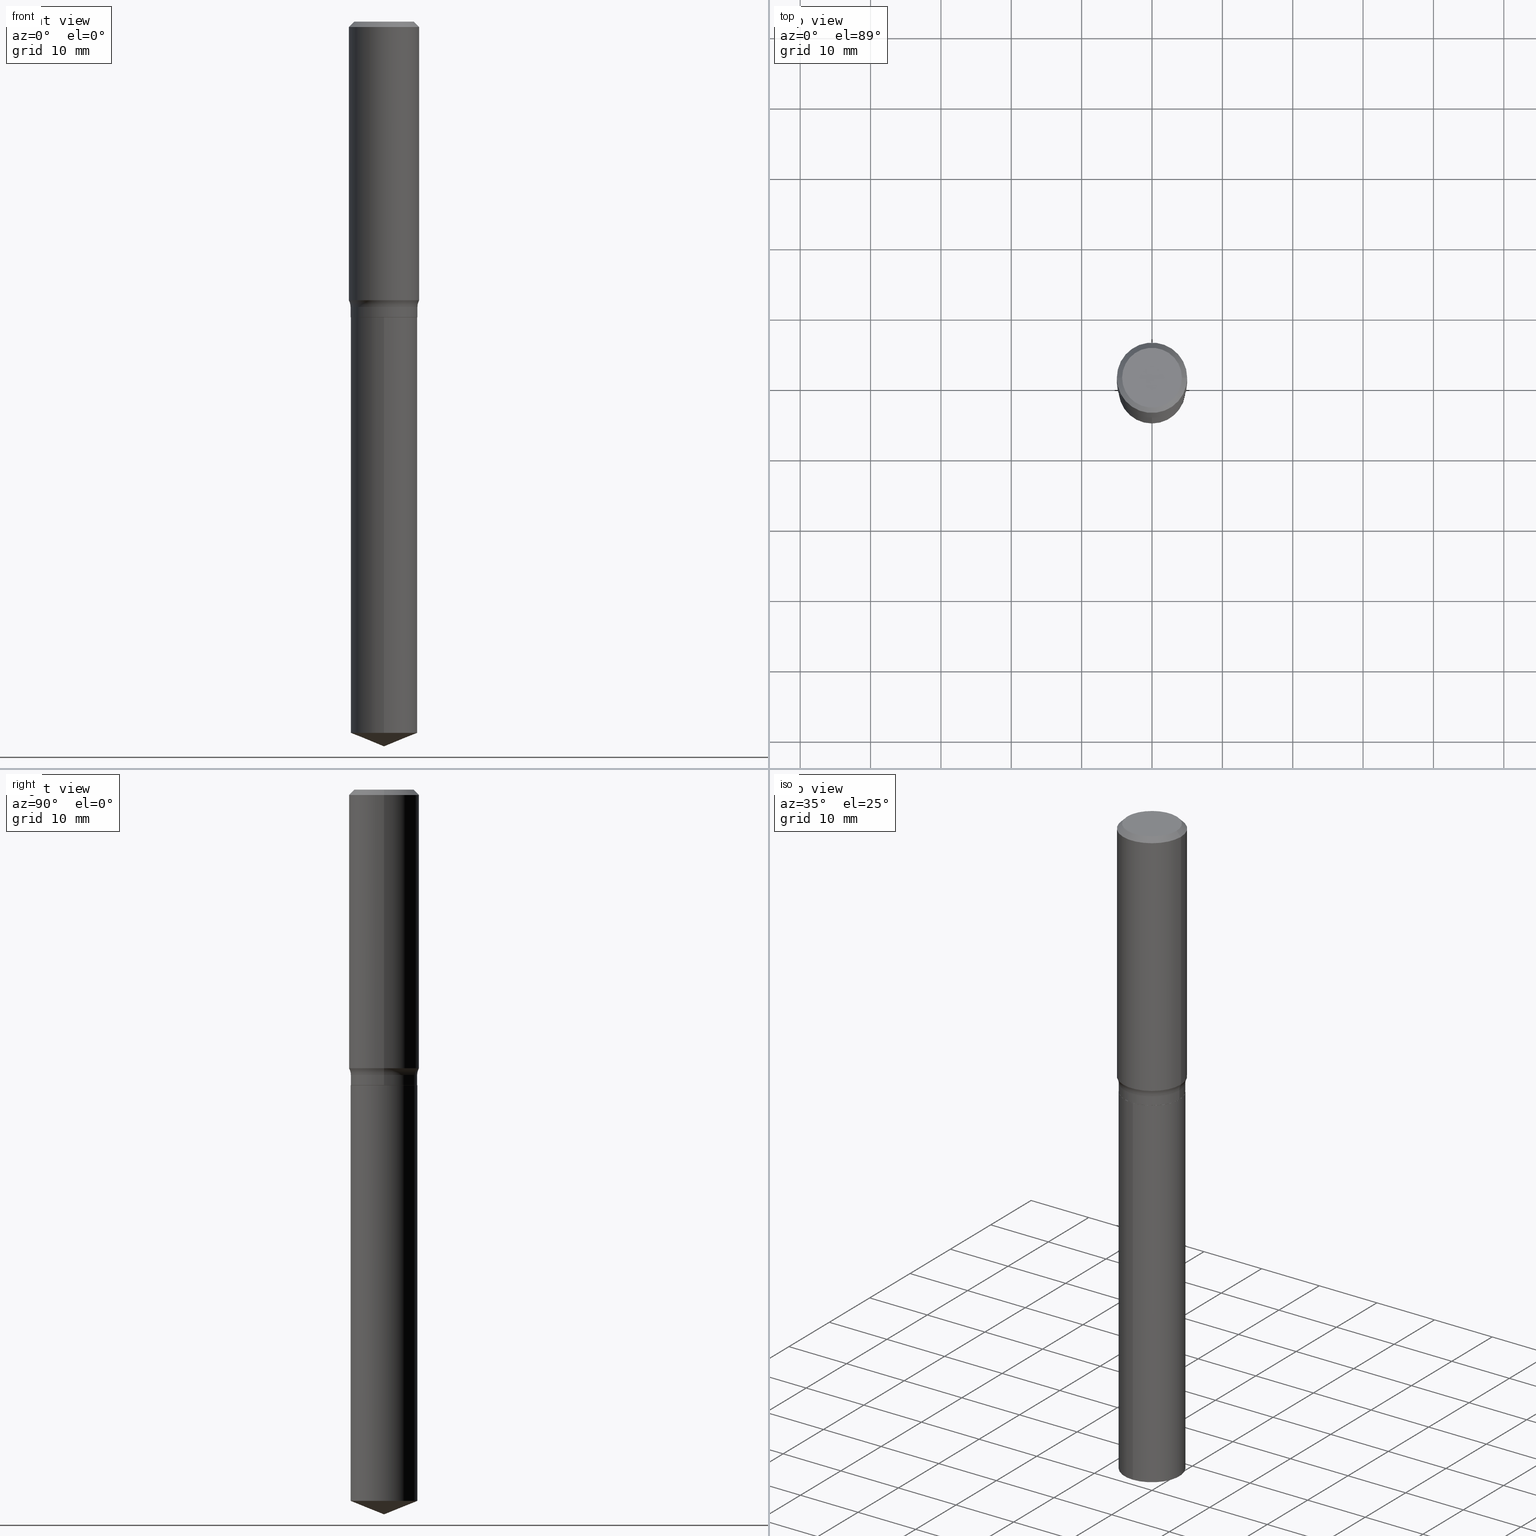
[diagram: canonical four-view strip — front | top / right | iso, engineering-drawing reading convention]
A machine part, canonical four-view strip (front | top / right | iso — engineering-drawing reading convention). The complete STEP part file that produces these views, byte-faithful:
ISO-10303-21;
HEADER;
FILE_DESCRIPTION (( 'STEP AP203' ),
    '1' );
FILE_NAME ('69288.STEP',
    '2024-04-19T17:40:49',
    ( '' ),
    ( '' ),
    'SwSTEP 2.0',
    'SolidWorks 2023',
    '' );
FILE_SCHEMA (( 'CONFIG_CONTROL_DESIGN' ));
ENDSEC;

DATA;
#1 = CIRCLE ( 'NONE', #29, 0.1968500000000000527 ) ;
#2 = EDGE_LOOP ( 'NONE', ( #348, #92, #356, #269 ) ) ;
#3 = EDGE_CURVE ( 'NONE', #179, #192, #471, .T. ) ;
#4 = DIRECTION ( 'NONE',  ( 1.000000000000000000, -6.982962677686265922E-15, 4.876176775795935793E-29 ) ) ;
#5 = CARTESIAN_POINT ( 'NONE',  ( 0.000000000000000000, 0.000000000000000000, 0.000000000000000000 ) ) ;
#6 =( NAMED_UNIT ( * ) PLANE_ANGLE_UNIT ( ) SI_UNIT ( $, .RADIAN. ) );
#7 = CIRCLE ( 'NONE', #490, 0.1673224999999999851 ) ;
#8 = APPLICATION_CONTEXT ( 'configuration controlled 3d designs of mechanical parts and assemblies' ) ;
#9 = ORIENTED_EDGE ( 'NONE', *, *, #268, .T. ) ;
#10 = DIRECTION ( 'NONE',  ( -2.445468806185136597E-29, 3.491481338843145583E-15, 1.000000000000000000 ) ) ;
#11 = DIRECTION ( 'NONE',  ( 1.000000000000000000, -6.982962677686269866E-15, 0.000000000000000000 ) ) ;
#12 = ORIENTED_EDGE ( 'NONE', *, *, #215, .T. ) ;
#13 = EDGE_CURVE ( 'NONE', #156, #262, #135, .T. ) ;
#14 = ORIENTED_EDGE ( 'NONE', *, *, #245, .F. ) ;
#15 = AXIS2_PLACEMENT_3D ( 'NONE', #89, #52, #358 ) ;
#16 = LOCAL_TIME ( 13, 40, 49.00000000000000000, #173 ) ;
#17 = DIRECTION ( 'NONE',  ( 0.7071067811865459074, -7.319954787623249734E-15, -0.7071067811865491270 ) ) ;
#18 = PERSON_AND_ORGANIZATION ( #311, #72 ) ;
#19 = ORIENTED_EDGE ( 'NONE', *, *, #283, .F. ) ;
#20 = DIRECTION ( 'NONE',  ( 2.445468806185136597E-29, -3.491481338843145583E-15, -1.000000000000000000 ) ) ;
#21 = DIRECTION ( 'NONE',  ( -0.7071067811864267805, 7.493145998869918709E-15, 0.7071067811866682540 ) ) ;
#22 = ADVANCED_FACE ( 'NONE', ( #282 ), #126, .T. ) ;
#23 = CARTESIAN_POINT ( 'NONE',  ( 0.1968500000000000527, -1.453583746094018101E-15, -0.02952750000000018554 ) ) ;
#24 = AXIS2_PLACEMENT_3D ( 'NONE', #74, #275, #483 ) ;
#25 = CIRCLE ( 'NONE', #307, 0.1869999999999999996 ) ;
#26 = CARTESIAN_POINT ( 'NONE',  ( 9.916532697805385385E-29, -1.415773403500555029E-14, -4.054999999999999716 ) ) ;
#27 = ORIENTED_EDGE ( 'NONE', *, *, #341, .T. ) ;
#28 = DIRECTION ( 'NONE',  ( -1.000000000000000000, 6.982962677686266711E-15, 0.000000000000000000 ) ) ;
#29 = AXIS2_PLACEMENT_3D ( 'NONE', #100, #458, #205 ) ;
#30 = ADVANCED_FACE ( 'NONE', ( #446 ), #451, .F. ) ;
#31 = DIRECTION ( 'NONE',  ( 1.000000000000000000, -6.982962677686265133E-15, 0.000000000000000000 ) ) ;
#32 = PRODUCT_DEFINITION_SHAPE ( 'NONE', 'NONE',  #84 ) ;
#33 = CARTESIAN_POINT ( 'NONE',  ( -0.2649999999999999578, -3.692608300234353392E-15, -1.596899999999999764 ) ) ;
#34 = VERTEX_POINT ( 'NONE', #470 ) ;
#35 = ORIENTED_EDGE ( 'NONE', *, *, #468, .T. ) ;
#36 = FACE_OUTER_BOUND ( 'NONE', #207, .T. ) ;
#37 = CIRCLE ( 'NONE', #150, 0.1869999999999999996 ) ;
#38 = AXIS2_PLACEMENT_3D ( 'NONE', #274, #10, #272 ) ;
#39 = VERTEX_POINT ( 'NONE', #123 ) ;
#40 = PLANE ( 'NONE',  #266 ) ;
#41 = EDGE_LOOP ( 'NONE', ( #397, #12, #316, #267 ) ) ;
#42 = CARTESIAN_POINT ( 'NONE',  ( 4.043338124146504977E-29, -5.772815245643255982E-15, -1.653399999999999981 ) ) ;
#43 = DIRECTION ( 'NONE',  ( -2.445468806185136877E-29, 3.491481338843145188E-15, 1.000000000000000000 ) ) ;
#44 = CARTESIAN_POINT ( 'NONE',  ( 4.043338124146503856E-29, -5.772815245643255193E-15, -1.653399999999999537 ) ) ;
#45 = DIRECTION ( 'NONE',  ( -6.474490251793180995E-15, -0.9271838545667867582, 0.3746065934159135136 ) ) ;
#46 = EDGE_CURVE ( 'NONE', #192, #179, #279, .T. ) ;
#47 = DIRECTION ( 'NONE',  ( 1.000000000000000000, -6.982962677686266711E-15, 4.876176775795935793E-29 ) ) ;
#48 = CIRCLE ( 'NONE', #364, 0.1968500000000002470 ) ;
#49 = CARTESIAN_POINT ( 'NONE',  ( 0.1968500000000002470, -6.817669790081734907E-15, -1.558958235412674087 ) ) ;
#50 = CONICAL_SURFACE ( 'NONE', #79, 0.1968500000000000527, 0.7853981633974460586 ) ;
#51 = SECURITY_CLASSIFICATION ( '', '', #241 ) ;
#52 = DIRECTION ( 'NONE',  ( -2.445468806185136597E-29, 3.491481338843145583E-15, 1.000000000000000000 ) ) ;
#53 = EDGE_CURVE ( 'NONE', #398, #98, #103, .T. ) ;
#54 = ORIENTED_EDGE ( 'NONE', *, *, #393, .F. ) ;
#55 = DIRECTION ( 'NONE',  ( 1.000000000000000000, 0.000000000000000000, 0.000000000000000000 ) ) ;
#56 = PERSON_AND_ORGANIZATION_ROLE ( 'design_supplier' ) ;
#57 = ORIENTED_EDGE ( 'NONE', *, *, #468, .F. ) ;
#58 = VERTEX_POINT ( 'NONE', #196 ) ;
#59 = CARTESIAN_POINT ( 'NONE',  ( 3.905169136597044195E-29, -5.575546549998618979E-15, -1.596899999999999764 ) ) ;
#60 = ORIENTED_EDGE ( 'NONE', *, *, #190, .T. ) ;
#61 = CLOSED_SHELL ( 'NONE', ( #425, #214, #64, #30, #339, #115, #432, #22, #340, #235, #457, #149 ) ) ;
#62 = LINE ( 'NONE', #70, #452 ) ;
#63 = CC_DESIGN_SECURITY_CLASSIFICATION ( #51, ( #324 ) ) ;
#64 = ADVANCED_FACE ( 'NONE', ( #318 ), #128, .T. ) ;
#65 = PERSON_AND_ORGANIZATION_ROLE ( 'creator' ) ;
#66 = CARTESIAN_POINT ( 'NONE',  ( 4.043338124146504977E-29, -5.772815245643255982E-15, -1.653399999999999981 ) ) ;
#67 = FACE_OUTER_BOUND ( 'NONE', #479, .T. ) ;
#68 = CARTESIAN_POINT ( 'NONE',  ( -0.1968500000000001360, 1.398703375343758182E-15, -9.682923725166790684E-30 ) ) ;
#69 = CARTESIAN_POINT ( 'NONE',  ( 1.328714915871427774E-15, 0.1869999999999942542, -1.653400000000000203 ) ) ;
#70 = CARTESIAN_POINT ( 'NONE',  ( -0.1869999999999999996, 1.328714915871387344E-15, -9.198408618776673100E-30 ) ) ;
#71 = AXIS2_PLACEMENT_3D ( 'NONE', #392, #355, #276 ) ;
#72 = ORGANIZATION ( 'UNSPECIFIED', 'UNSPECIFIED', '' ) ;
#73 = DIRECTION ( 'NONE',  ( -2.445468806185136597E-29, 3.491481338843145583E-15, 1.000000000000000000 ) ) ;
#74 = CARTESIAN_POINT ( 'NONE',  ( 4.043338124146503856E-29, -5.772815245643255193E-15, -1.653399999999999537 ) ) ;
#75 = ADVANCED_FACE ( 'NONE', ( #171 ), #265, .T. ) ;
#76 = EDGE_CURVE ( 'NONE', #98, #398, #87, .T. ) ;
#77 = EDGE_CURVE ( 'NONE', #273, #492, #48, .T. ) ;
#78 = ORIENTED_EDGE ( 'NONE', *, *, #3, .T. ) ;
#79 = AXIS2_PLACEMENT_3D ( 'NONE', #377, #213, #28 ) ;
#80 = EDGE_CURVE ( 'NONE', #244, #58, #463, .T. ) ;
#81 = ADVANCED_FACE ( 'NONE', ( #455 ), #291, .F. ) ;
#82 = FACE_OUTER_BOUND ( 'NONE', #133, .T. ) ;
#83 = CARTESIAN_POINT ( 'NONE',  ( 0.1968500000000001360, -1.374596203102542594E-15, 9.598753983154306463E-30 ) ) ;
#84 = PRODUCT_DEFINITION ( 'UNKNOWN', '', #324, #152 ) ;
#85 = PRODUCT ( '69288', '69288', '', ( #167 ) ) ;
#86 = APPROVAL_ROLE ( '' ) ;
#87 = CIRCLE ( 'NONE', #378, 0.1869999999999999996 ) ;
#88 = CC_DESIGN_APPROVAL ( #469, ( #84 ) ) ;
#89 = CARTESIAN_POINT ( 'NONE',  ( 3.905169136597044195E-29, -5.575546549998618979E-15, -1.596899999999999764 ) ) ;
#90 = CARTESIAN_POINT ( 'NONE',  ( 3.812383734847119747E-29, -5.443073586979190932E-15, -1.558958235412674087 ) ) ;
#91 = DIRECTION ( 'NONE',  ( 1.000000000000000000, -6.982962677686265133E-15, 0.000000000000000000 ) ) ;
#92 = ORIENTED_EDGE ( 'NONE', *, *, #405, .F. ) ;
#93 = CARTESIAN_POINT ( 'NONE',  ( 0.1864999999999999991, -7.075137785031744976E-15, -1.653399999999999981 ) ) ;
#94 = DIRECTION ( 'NONE',  ( -2.445507172700810819E-29, 3.491426395809013811E-15, 1.000000000000000000 ) ) ;
#95 = CIRCLE ( 'NONE', #157, 0.1869999999999999996 ) ;
#96 = ORIENTED_EDGE ( 'NONE', *, *, #185, .T. ) ;
#97 = DIRECTION ( 'NONE',  ( -2.445468806185136597E-29, 3.491481338843145583E-15, 1.000000000000000000 ) ) ;
#98 = VERTEX_POINT ( 'NONE', #232 ) ;
#99 = ORIENTED_EDGE ( 'NONE', *, *, #80, .F. ) ;
#100 = CARTESIAN_POINT ( 'NONE',  ( 7.220858017463207734E-31, -1.030947152326916363E-16, -0.02952750000000018554 ) ) ;
#101 = LINE ( 'NONE', #409, #347 ) ;
#102 = CALENDAR_DATE ( 2024, 19, 4 ) ;
#103 = CIRCLE ( 'NONE', #15, 0.1869999999999999996 ) ;
#104 = VECTOR ( 'NONE', #45, 39.37007874015748143 ) ;
#105 = DIRECTION ( 'NONE',  ( -2.445468806185136597E-29, 3.491481338843145583E-15, 1.000000000000000000 ) ) ;
#106 = CARTESIAN_POINT ( 'NONE',  ( 4.043338124146503856E-29, -5.772815245643255193E-15, -1.653399999999999537 ) ) ;
#107 = CARTESIAN_POINT ( 'NONE',  ( -0.1968500000000000527, -1.374380775762182930E-15, -0.02952750000000018554 ) ) ;
#108 = EDGE_CURVE ( 'NONE', #34, #398, #320, .T. ) ;
#109 = DIRECTION ( 'NONE',  ( -2.445507172700810819E-29, 3.491426395809013811E-15, 1.000000000000000000 ) ) ;
#110 = APPROVAL_PERSON_ORGANIZATION ( #296, #411, #371 ) ;
#111 = ORIENTED_EDGE ( 'NONE', *, *, #226, .T. ) ;
#112 = EDGE_CURVE ( 'NONE', #381, #435, #95, .T. ) ;
#113 = DIRECTION ( 'NONE',  ( -6.982962677686266711E-15, -1.000000000000000000, 2.921762560068730595E-15 ) ) ;
#114 = ORIENTED_EDGE ( 'NONE', *, *, #195, .T. ) ;
#115 = ADVANCED_FACE ( 'NONE', ( #161 ), #401, .T. ) ;
#116 = DIRECTION ( 'NONE',  ( 7.105427357601001859E-15, 1.000000000000000000, -3.491481338843145583E-15 ) ) ;
#117 = CIRCLE ( 'NONE', #280, 0.1869999999999999996 ) ;
#118 = CC_DESIGN_PERSON_AND_ORGANIZATION_ASSIGNMENT ( #18, #177, ( #51 ) ) ;
#119 = EDGE_LOOP ( 'NONE', ( #148, #174, #27, #172 ) ) ;
#120 = ORIENTED_EDGE ( 'NONE', *, *, #217, .F. ) ;
#121 = DIRECTION ( 'NONE',  ( -2.445468806185136597E-29, 3.491481338843145583E-15, 1.000000000000000000 ) ) ;
#122 = AXIS2_PLACEMENT_3D ( 'NONE', #66, #73, #300 ) ;
#123 = CARTESIAN_POINT ( 'NONE',  ( 9.916531585301787226E-29, -1.415773403500555029E-14, -4.054999999999999716 ) ) ;
#124 = DIRECTION ( 'NONE',  ( 1.000000000000000000, -6.982962677686265133E-15, 0.000000000000000000 ) ) ;
#125 = MANIFOLD_SOLID_BREP ( 'Body-Move/Copy2[2]', #61 ) ;
#126 = CYLINDRICAL_SURFACE ( 'NONE', #249, 0.1968500000000001360 ) ;
#127 = PERSON_AND_ORGANIZATION ( #311, #72 ) ;
#128 = CYLINDRICAL_SURFACE ( 'NONE', #164, 0.1968500000000001360 ) ;
#129 = DATE_AND_TIME ( #412, #184 ) ;
#130 = CARTESIAN_POINT ( 'NONE',  ( -0.1968500000000000527, 1.271501487869850317E-15, -0.02952750000000018554 ) ) ;
#131 = AXIS2_PLACEMENT_3D ( 'NONE', #137, #332, #143 ) ;
#132 = APPLICATION_PROTOCOL_DEFINITION ( 'international standard', 'config_control_design', 1994, #390 ) ;
#133 = EDGE_LOOP ( 'NONE', ( #238, #363 ) ) ;
#134 = CALENDAR_DATE ( 2024, 19, 4 ) ;
#135 = LINE ( 'NONE', #130, #223 ) ;
#136 = CARTESIAN_POINT ( 'NONE',  ( 4.043338124146504977E-29, -5.772815245643255982E-15, -1.653399999999999981 ) ) ;
#137 = CARTESIAN_POINT ( 'NONE',  ( 0.000000000000000000, 0.000000000000000000, 0.000000000000000000 ) ) ;
#138 = ORIENTED_EDGE ( 'NONE', *, *, #305, .F. ) ;
#139 = EDGE_LOOP ( 'NONE', ( #284, #287, #160, #485 ) ) ;
#140 = CARTESIAN_POINT ( 'NONE',  ( 0.1864999999999999991, -7.075137785031744976E-15, -1.653399999999999981 ) ) ;
#141 = PERSON_AND_ORGANIZATION_ROLE ( 'creator' ) ;
#142 = AXIS2_PLACEMENT_3D ( 'NONE', #90, #475, #472 ) ;
#143 = DIRECTION ( 'NONE',  ( 1.000000000000000000, -6.982962677686266711E-15, 4.876176775795935793E-29 ) ) ;
#144 = COORDINATED_UNIVERSAL_TIME_OFFSET ( 5, 0, .BEHIND. ) ;
#145 = LINE ( 'NONE', #297, #465 ) ;
#146 = DIRECTION ( 'NONE',  ( -1.000000000000000000, 6.982962677686266711E-15, 0.000000000000000000 ) ) ;
#147 = EDGE_CURVE ( 'NONE', #273, #262, #256, .T. ) ;
#148 = ORIENTED_EDGE ( 'NONE', *, *, #215, .F. ) ;
#149 = ADVANCED_FACE ( 'NONE', ( #211 ), #188, .T. ) ;
#150 = AXIS2_PLACEMENT_3D ( 'NONE', #263, #424, #31 ) ;
#151 = CIRCLE ( 'NONE', #353, 0.1968500000000000527 ) ;
#152 = DESIGN_CONTEXT ( 'detailed design', #390, 'design' ) ;
#153 = CARTESIAN_POINT ( 'NONE',  ( 4.043338124146503856E-29, -5.772815245643255193E-15, -1.653399999999999537 ) ) ;
#154 = ORIENTED_EDGE ( 'NONE', *, *, #112, .F. ) ;
#155 = EDGE_LOOP ( 'NONE', ( #54, #315, #154 ) ) ;
#156 = VERTEX_POINT ( 'NONE', #404 ) ;
#157 = AXIS2_PLACEMENT_3D ( 'NONE', #442, #193, #240 ) ;
#158 =( GEOMETRIC_REPRESENTATION_CONTEXT ( 3 ) GLOBAL_UNCERTAINTY_ASSIGNED_CONTEXT ( ( #461 ) ) GLOBAL_UNIT_ASSIGNED_CONTEXT ( ( #350, #6, #162 ) ) REPRESENTATION_CONTEXT ( 'NONE', 'WORKASPACE' ) );
#159 = EDGE_LOOP ( 'NONE', ( #60, #319, #440, #168 ) ) ;
#160 = ORIENTED_EDGE ( 'NONE', *, *, #108, .T. ) ;
#161 = FACE_OUTER_BOUND ( 'NONE', #139, .T. ) ;
#162 =( NAMED_UNIT ( * ) SI_UNIT ( $, .STERADIAN. ) SOLID_ANGLE_UNIT ( ) );
#163 = EDGE_LOOP ( 'NONE', ( #466, #111, #484, #194 ) ) ;
#164 = AXIS2_PLACEMENT_3D ( 'NONE', #5, #362, #47 ) ;
#165 = TOROIDAL_SURFACE ( 'NONE', #38, 0.2649999999999999578, 0.07799999999999997213 ) ;
#166 = DIRECTION ( 'NONE',  ( -2.445468806185136597E-29, 3.491481338843145583E-15, 1.000000000000000000 ) ) ;
#167 = MECHANICAL_CONTEXT ( 'NONE', #8, 'mechanical' ) ;
#168 = ORIENTED_EDGE ( 'NONE', *, *, #108, .F. ) ;
#169 = ORIENTED_EDGE ( 'NONE', *, *, #385, .F. ) ;
#170 = DIRECTION ( 'NONE',  ( -2.445507172700810819E-29, 3.491426395809013811E-15, 1.000000000000000000 ) ) ;
#171 = FACE_OUTER_BOUND ( 'NONE', #155, .T. ) ;
#172 = ORIENTED_EDGE ( 'NONE', *, *, #391, .F. ) ;
#173 = COORDINATED_UNIVERSAL_TIME_OFFSET ( 5, 0, .BEHIND. ) ;
#174 = ORIENTED_EDGE ( 'NONE', *, *, #197, .T. ) ;
#175 = LOCAL_TIME ( 13, 40, 49.00000000000000000, #144 ) ;
#176 = DIRECTION ( 'NONE',  ( 1.000000000000000000, -6.982962677686267499E-15, 4.876294436782262290E-29 ) ) ;
#177 = PERSON_AND_ORGANIZATION_ROLE ( 'classification_officer' ) ;
#178 = CARTESIAN_POINT ( 'NONE',  ( 4.043338124146503856E-29, -5.772815245643255193E-15, -1.653399999999999537 ) ) ;
#179 = VERTEX_POINT ( 'NONE', #372 ) ;
#180 = CARTESIAN_POINT ( 'NONE',  ( -0.1968500000000002470, -4.044370211635432356E-15, -1.558958235412674087 ) ) ;
#181 = DIRECTION ( 'NONE',  ( -2.445507172700810819E-29, 3.491426395809013811E-15, 1.000000000000000000 ) ) ;
#182 = DATE_TIME_ROLE ( 'classification_date' ) ;
#183 = CYLINDRICAL_SURFACE ( 'NONE', #383, 0.1869999999999999996 ) ;
#184 = LOCAL_TIME ( 13, 40, 49.00000000000000000, #416 ) ;
#185 = EDGE_CURVE ( 'NONE', #435, #192, #252, .T. ) ;
#186 = CYLINDRICAL_SURFACE ( 'NONE', #423, 0.1869999999999999996 ) ;
#187 = CONICAL_SURFACE ( 'NONE', #473, 0.1968500000000000527, 0.7853981633974460586 ) ;
#188 = CONICAL_SURFACE ( 'NONE', #480, 0.1864999999999999991, 0.7853981633972775267 ) ;
#189 = DIRECTION ( 'NONE',  ( -1.000000000000000000, 7.105427357601001859E-15, 0.000000000000000000 ) ) ;
#190 = EDGE_CURVE ( 'NONE', #34, #388, #37, .T. ) ;
#191 = LOCAL_TIME ( 13, 40, 49.00000000000000000, #487 ) ;
#192 = VERTEX_POINT ( 'NONE', #298 ) ;
#193 = DIRECTION ( 'NONE',  ( -2.445507172700810819E-29, 3.491426395809013811E-15, 1.000000000000000000 ) ) ;
#194 = ORIENTED_EDGE ( 'NONE', *, *, #335, .F. ) ;
#195 = EDGE_CURVE ( 'NONE', #492, #474, #344, .T. ) ;
#196 = CARTESIAN_POINT ( 'NONE',  ( -0.1864999999999999991, -4.445003816276557941E-15, -1.653399999999999981 ) ) ;
#197 = EDGE_CURVE ( 'NONE', #58, #244, #208, .T. ) ;
#198 = CARTESIAN_POINT ( 'NONE',  ( 0.1869999999999999996, -1.305814020727331804E-15, 9.118450570738399708E-30 ) ) ;
#199 = ORIENTED_EDGE ( 'NONE', *, *, #77, .T. ) ;
#200 = PERSON_AND_ORGANIZATION ( #311, #72 ) ;
#201 = CARTESIAN_POINT ( 'NONE',  ( 3.905169136597044195E-29, -5.575546549998618979E-15, -1.596899999999999764 ) ) ;
#202 = DIRECTION ( 'NONE',  ( -2.445468806185136597E-29, 3.491481338843145583E-15, 1.000000000000000000 ) ) ;
#203 = APPROVAL_DATE_TIME ( #129, #400 ) ;
#204 = EDGE_LOOP ( 'NONE', ( #99, #345 ) ) ;
#205 = DIRECTION ( 'NONE',  ( 1.000000000000000000, -6.982962677686266711E-15, 0.000000000000000000 ) ) ;
#206 = PERSON_AND_ORGANIZATION ( #311, #72 ) ;
#207 = EDGE_LOOP ( 'NONE', ( #448, #35, #426, #368 ) ) ;
#208 = CIRCLE ( 'NONE', #122, 0.1864999999999999991 ) ;
#209 = VECTOR ( 'NONE', #17, 39.37007874015748143 ) ;
#210 = DIMENSIONAL_EXPONENTS ( 1.000000000000000000, 0.000000000000000000, 0.000000000000000000, 0.000000000000000000, 0.000000000000000000, 0.000000000000000000, 0.000000000000000000 ) ;
#211 = FACE_OUTER_BOUND ( 'NONE', #119, .T. ) ;
#212 = CARTESIAN_POINT ( 'NONE',  ( 0.2649999999999999578, -7.426031659585479815E-15, -1.596899999999999764 ) ) ;
#213 = DIRECTION ( 'NONE',  ( 2.445468806185136597E-29, -3.491481338843145583E-15, -1.000000000000000000 ) ) ;
#214 = ADVANCED_FACE ( 'NONE', ( #221 ), #50, .T. ) ;
#215 = EDGE_CURVE ( 'NONE', #58, #388, #101, .T. ) ;
#216 = SHAPE_DEFINITION_REPRESENTATION ( #32, #243 ) ;
#217 = EDGE_CURVE ( 'NONE', #156, #386, #314, .T. ) ;
#218 = AXIS2_PLACEMENT_3D ( 'NONE', #418, #365, #254 ) ;
#219 = VECTOR ( 'NONE', #415, 39.37007874015748143 ) ;
#220 = LINE ( 'NONE', #140, #219 ) ;
#221 = FACE_OUTER_BOUND ( 'NONE', #304, .T. ) ;
#222 = ORIENTED_EDGE ( 'NONE', *, *, #385, .T. ) ;
#223 = VECTOR ( 'NONE', #286, 39.37007874015748143 ) ;
#224 = DIRECTION ( 'NONE',  ( 1.000000000000000000, -6.982962677686267499E-15, 4.876294436782262290E-29 ) ) ;
#225 = ORIENTED_EDGE ( 'NONE', *, *, #46, .T. ) ;
#226 = EDGE_CURVE ( 'NONE', #273, #98, #281, .T. ) ;
#227 = AXIS2_PLACEMENT_3D ( 'NONE', #178, #94, #438 ) ;
#228 = EDGE_LOOP ( 'NONE', ( #444, #199, #114, #169 ) ) ;
#229 = DIRECTION ( 'NONE',  ( 1.000000000000000000, -6.982962677686268288E-15, 0.000000000000000000 ) ) ;
#230 = ORIENTED_EDGE ( 'NONE', *, *, #376, .F. ) ;
#231 = CARTESIAN_POINT ( 'NONE',  ( 1.328714915871484769E-15, 0.1869999999999861218, -3.979447095768826603 ) ) ;
#232 = CARTESIAN_POINT ( 'NONE',  ( -0.1869999999999999996, -4.344593111614838595E-15, -1.596899999999999764 ) ) ;
#233 = CARTESIAN_POINT ( 'NONE',  ( 3.812383734847119747E-29, -5.443073586979190932E-15, -1.558958235412674087 ) ) ;
#234 = PERSON_AND_ORGANIZATION_ROLE ( 'design_owner' ) ;
#235 = ADVANCED_FACE ( 'NONE', ( #82 ), #310, .F. ) ;
#236 = AXIS2_PLACEMENT_3D ( 'NONE', #212, #328, #488 ) ;
#237 = DIRECTION ( 'NONE',  ( 1.000000000000000000, -6.982962677686266711E-15, 4.876176775795935793E-29 ) ) ;
#238 = ORIENTED_EDGE ( 'NONE', *, *, #217, .T. ) ;
#239 = CARTESIAN_POINT ( 'NONE',  ( 0.000000000000000000, 0.000000000000000000, 0.000000000000000000 ) ) ;
#240 = DIRECTION ( 'NONE',  ( -6.982962677686266711E-15, -1.000000000000000000, 2.921762560068730595E-15 ) ) ;
#241 = SECURITY_CLASSIFICATION_LEVEL ( 'unclassified' ) ;
#242 = CARTESIAN_POINT ( 'NONE',  ( -8.636334179874603903E-28, 1.232999072406469164E-13, 35.31507874015748172 ) ) ;
#243 = ADVANCED_BREP_SHAPE_REPRESENTATION ( '69288', ( #462, #125, #460 ), #158 ) ;
#244 = VERTEX_POINT ( 'NONE', #93 ) ;
#245 = EDGE_CURVE ( 'NONE', #386, #474, #453, .T. ) ;
#246 = EDGE_LOOP ( 'NONE', ( #343, #96, #309, #230 ) ) ;
#247 = DIRECTION ( 'NONE',  ( -2.445507172700810819E-29, 3.491426395809013811E-15, 1.000000000000000000 ) ) ;
#248 = CALENDAR_DATE ( 2024, 19, 4 ) ;
#249 = AXIS2_PLACEMENT_3D ( 'NONE', #351, #97, #237 ) ;
#250 = DIRECTION ( 'NONE',  ( -2.445468806185136877E-29, 3.491481338843145188E-15, 1.000000000000000000 ) ) ;
#251 = PERSON_AND_ORGANIZATION ( #311, #72 ) ;
#252 = LINE ( 'NONE', #69, #419 ) ;
#253 = FACE_OUTER_BOUND ( 'NONE', #326, .T. ) ;
#254 = DIRECTION ( 'NONE',  ( 1.000000000000000000, -6.982962677686266711E-15, 4.876176775795935793E-29 ) ) ;
#255 = FACE_OUTER_BOUND ( 'NONE', #246, .T. ) ;
#256 = LINE ( 'NONE', #68, #441 ) ;
#257 = CONICAL_SURFACE ( 'NONE', #302, 97.44436430772871915, 1.186823891356145966 ) ;
#258 = DIRECTION ( 'NONE',  ( -2.445468806185136877E-29, 3.491481338843145188E-15, 1.000000000000000000 ) ) ;
#259 = CC_DESIGN_DATE_AND_TIME_ASSIGNMENT ( #361, #182, ( #51 ) ) ;
#260 = DIRECTION ( 'NONE',  ( -2.445468806185136597E-29, 3.491481338843145583E-15, 1.000000000000000000 ) ) ;
#261 = CARTESIAN_POINT ( 'NONE',  ( -0.1869999999999999996, -4.344593111614838595E-15, -1.652899999999999814 ) ) ;
#262 = VERTEX_POINT ( 'NONE', #107 ) ;
#263 = CARTESIAN_POINT ( 'NONE',  ( 4.042115389743411055E-29, -5.771069504973833690E-15, -1.652899999999999814 ) ) ;
#264 = CARTESIAN_POINT ( 'NONE',  ( 0.1673224999999999851, -1.300749711163072594E-15, 4.096137381456741925E-18 ) ) ;
#265 = CONICAL_SURFACE ( 'NONE', #301, 97.44436430772871915, 1.186823891356145966 ) ;
#266 = AXIS2_PLACEMENT_3D ( 'NONE', #394, #349, #4 ) ;
#267 = ORIENTED_EDGE ( 'NONE', *, *, #341, .F. ) ;
#268 = EDGE_CURVE ( 'NONE', #474, #262, #151, .T. ) ;
#269 = ORIENTED_EDGE ( 'NONE', *, *, #53, .T. ) ;
#270 = CC_DESIGN_PERSON_AND_ORGANIZATION_ASSIGNMENT ( #443, #65, ( #324 ) ) ;
#271 = DIRECTION ( 'NONE',  ( 1.000000000000000000, -6.982962677686265922E-15, 4.883557194083112901E-29 ) ) ;
#272 = DIRECTION ( 'NONE',  ( 1.000000000000000000, -6.982962677686265922E-15, 4.883557194083112901E-29 ) ) ;
#273 = VERTEX_POINT ( 'NONE', #180 ) ;
#274 = CARTESIAN_POINT ( 'NONE',  ( 3.905169136597044195E-29, -5.575546549998618979E-15, -1.596899999999999764 ) ) ;
#275 = DIRECTION ( 'NONE',  ( 2.445507172700810538E-29, -3.491426395809013417E-15, -1.000000000000000000 ) ) ;
#276 = DIRECTION ( 'NONE',  ( 1.000000000000000000, -6.982962677686268288E-15, 0.000000000000000000 ) ) ;
#277 = ORIENTED_EDGE ( 'NONE', *, *, #393, .T. ) ;
#278 = DIRECTION ( 'NONE',  ( -6.982962677686266711E-15, -1.000000000000000000, 2.921762560068730595E-15 ) ) ;
#279 = CIRCLE ( 'NONE', #346, 0.1869999999999999996 ) ;
#280 = AXIS2_PLACEMENT_3D ( 'NONE', #422, #121, #124 ) ;
#281 = CIRCLE ( 'NONE', #342, 0.07799999999999995826 ) ;
#282 = FACE_OUTER_BOUND ( 'NONE', #228, .T. ) ;
#283 = EDGE_CURVE ( 'NONE', #39, #435, #295, .T. ) ;
#284 = ORIENTED_EDGE ( 'NONE', *, *, #331, .F. ) ;
#285 = DATE_TIME_ROLE ( 'creation_date' ) ;
#286 = DIRECTION ( 'NONE',  ( -0.7071067811865459074, 2.468850131082240100E-15, -0.7071067811865491270 ) ) ;
#287 = ORIENTED_EDGE ( 'NONE', *, *, #391, .T. ) ;
#288 = CC_DESIGN_PERSON_AND_ORGANIZATION_ASSIGNMENT ( #206, #141, ( #84 ) ) ;
#289 = DIRECTION ( 'NONE',  ( -2.445468806185136877E-29, 3.491481338843145188E-15, 1.000000000000000000 ) ) ;
#290 = PERSON_AND_ORGANIZATION ( #311, #72 ) ;
#291 = PLANE ( 'NONE',  #24 ) ;
#292 = CARTESIAN_POINT ( 'NONE',  ( 7.220858017463207734E-31, -1.030947152326916363E-16, -0.02952750000000018554 ) ) ;
#293 = DATE_AND_TIME ( #248, #16 ) ;
#294 = AXIS2_PLACEMENT_3D ( 'NONE', #317, #437, #312 ) ;
#295 = LINE ( 'NONE', #26, #431 ) ;
#296 = PERSON_AND_ORGANIZATION ( #311, #72 ) ;
#297 = CARTESIAN_POINT ( 'NONE',  ( -1.305814020727291375E-15, -0.1870000000000057727, -1.653399999999999093 ) ) ;
#298 = CARTESIAN_POINT ( 'NONE',  ( 1.328714915871484966E-15, 0.1869999999999942542, -1.653400000000000203 ) ) ;
#299 = CARTESIAN_POINT ( 'NONE',  ( -8.636334179874603903E-28, 1.232999072406469164E-13, 35.31507874015748172 ) ) ;
#300 = DIRECTION ( 'NONE',  ( 1.000000000000000000, -6.982962677686268288E-15, 0.000000000000000000 ) ) ;
#301 = AXIS2_PLACEMENT_3D ( 'NONE', #242, #247, #406 ) ;
#302 = AXIS2_PLACEMENT_3D ( 'NONE', #299, #109, #491 ) ;
#303 = CARTESIAN_POINT ( 'NONE',  ( -1.001697619218021790E-46, 1.430158722866389718E-32, 4.096137381448108366E-18 ) ) ;
#304 = EDGE_LOOP ( 'NONE', ( #138, #477, #9, #445 ) ) ;
#305 = EDGE_CURVE ( 'NONE', #386, #156, #7, .T. ) ;
#306 = VECTOR ( 'NONE', #43, 39.37007874015748143 ) ;
#307 = AXIS2_PLACEMENT_3D ( 'NONE', #399, #170, #278 ) ;
#308 = CC_DESIGN_PERSON_AND_ORGANIZATION_ASSIGNMENT ( #251, #56, ( #324 ) ) ;
#309 = ORIENTED_EDGE ( 'NONE', *, *, #3, .F. ) ;
#310 = PLANE ( 'NONE',  #294 ) ;
#311 = PERSON ( 'UNSPECIFIED', 'UNSPECIFIED', 'UNSPECIFIED', ('UNSPECIFIED'), ('UNSPECIFIED'), ('UNSPECIFIED') ) ;
#312 = DIRECTION ( 'NONE',  ( -1.000000000000000000, 6.982962677686265922E-15, -4.876176775795935793E-29 ) ) ;
#313 = FACE_OUTER_BOUND ( 'NONE', #2, .T. ) ;
#314 = CIRCLE ( 'NONE', #334, 0.1673224999999999851 ) ;
#315 = ORIENTED_EDGE ( 'NONE', *, *, #283, .T. ) ;
#316 = ORIENTED_EDGE ( 'NONE', *, *, #190, .F. ) ;
#317 = CARTESIAN_POINT ( 'NONE',  ( -5.008488096090108951E-47, 7.150793614331948590E-33, 2.048068690724054183E-18 ) ) ;
#318 = FACE_OUTER_BOUND ( 'NONE', #413, .T. ) ;
#319 = ORIENTED_EDGE ( 'NONE', *, *, #331, .T. ) ;
#320 = LINE ( 'NONE', #198, #306 ) ;
#321 = DIRECTION ( 'NONE',  ( -2.445468806185136597E-29, 3.491481338843145583E-15, 1.000000000000000000 ) ) ;
#322 = FACE_OUTER_BOUND ( 'NONE', #204, .T. ) ;
#323 = AXIS2_PLACEMENT_3D ( 'NONE', #201, #476, #271 ) ;
#324 = PRODUCT_DEFINITION_FORMATION_WITH_SPECIFIED_SOURCE ( 'ANY', '', #85, .NOT_KNOWN. ) ;
#325 = APPROVAL_DATE_TIME ( #293, #411 ) ;
#326 = EDGE_LOOP ( 'NONE', ( #14, #120, #369, #222 ) ) ;
#327 = ORIENTED_EDGE ( 'NONE', *, *, #268, .F. ) ;
#328 = DIRECTION ( 'NONE',  ( -6.982962677686266711E-15, -1.000000000000000000, 3.491481338843145583E-15 ) ) ;
#329 = CALENDAR_DATE ( 2024, 19, 4 ) ;
#330 = DIRECTION ( 'NONE',  ( 1.000000000000000000, -6.982962677686268288E-15, 0.000000000000000000 ) ) ;
#331 = EDGE_CURVE ( 'NONE', #388, #98, #62, .T. ) ;
#332 = DIRECTION ( 'NONE',  ( -2.445468806185136597E-29, 3.491481338843145583E-15, 1.000000000000000000 ) ) ;
#333 = APPROVAL_ROLE ( '' ) ;
#334 = AXIS2_PLACEMENT_3D ( 'NONE', #303, #260, #224 ) ;
#335 = EDGE_CURVE ( 'NONE', #492, #398, #410, .T. ) ;
#336 = CYLINDRICAL_SURFACE ( 'NONE', #131, 0.1869999999999999996 ) ;
#337 = ADVANCED_FACE ( 'NONE', ( #255 ), #183, .T. ) ;
#338 = DIRECTION ( 'NONE',  ( 6.588037525764792868E-15, 0.9271838545667893117, 0.3746065934159070188 ) ) ;
#339 = ADVANCED_FACE ( 'NONE', ( #450 ), #336, .T. ) ;
#340 = ADVANCED_FACE ( 'NONE', ( #253 ), #187, .T. ) ;
#341 = EDGE_CURVE ( 'NONE', #244, #34, #220, .T. ) ;
#342 = AXIS2_PLACEMENT_3D ( 'NONE', #33, #116, #189 ) ;
#343 = ORIENTED_EDGE ( 'NONE', *, *, #112, .T. ) ;
#344 = LINE ( 'NONE', #83, #429 ) ;
#345 = ORIENTED_EDGE ( 'NONE', *, *, #197, .F. ) ;
#346 = AXIS2_PLACEMENT_3D ( 'NONE', #44, #433, #402 ) ;
#347 = VECTOR ( 'NONE', #21, 39.37007874015748143 ) ;
#348 = ORIENTED_EDGE ( 'NONE', *, *, #226, .F. ) ;
#349 = DIRECTION ( 'NONE',  ( -2.438088387897960049E-29, 3.491481338843145188E-15, 1.000000000000000000 ) ) ;
#350 =( CONVERSION_BASED_UNIT ( 'INCH', #436 ) LENGTH_UNIT ( ) NAMED_UNIT ( #210 ) );
#351 = CARTESIAN_POINT ( 'NONE',  ( 0.000000000000000000, 0.000000000000000000, 0.000000000000000000 ) ) ;
#352 = ADVANCED_FACE ( 'NONE', ( #67 ), #257, .T. ) ;
#353 = AXIS2_PLACEMENT_3D ( 'NONE', #292, #373, #408 ) ;
#354 = APPROVAL_PERSON_ORGANIZATION ( #290, #400, #333 ) ;
#355 = DIRECTION ( 'NONE',  ( -2.445468806185136597E-29, 3.491481338843145583E-15, 1.000000000000000000 ) ) ;
#356 = ORIENTED_EDGE ( 'NONE', *, *, #335, .T. ) ;
#357 = CARTESIAN_POINT ( 'NONE',  ( 0.1968500000000000527, -1.477690918335233688E-15, -0.02952750000000018554 ) ) ;
#358 = DIRECTION ( 'NONE',  ( 1.000000000000000000, -6.982962677686265133E-15, 0.000000000000000000 ) ) ;
#359 = ORIENTED_EDGE ( 'NONE', *, *, #195, .F. ) ;
#360 =( LENGTH_UNIT ( ) NAMED_UNIT ( * ) SI_UNIT ( $, .METRE. ) );
#361 = DATE_AND_TIME ( #329, #396 ) ;
#362 = DIRECTION ( 'NONE',  ( -2.445468806185136597E-29, 3.491481338843145583E-15, 1.000000000000000000 ) ) ;
#363 = ORIENTED_EDGE ( 'NONE', *, *, #305, .T. ) ;
#364 = AXIS2_PLACEMENT_3D ( 'NONE', #233, #321, #11 ) ;
#365 = DIRECTION ( 'NONE',  ( -2.445468806185136597E-29, 3.491481338843145583E-15, 1.000000000000000000 ) ) ;
#366 = CC_DESIGN_APPROVAL ( #411, ( #324 ) ) ;
#367 = APPROVAL_STATUS ( 'not_yet_approved' ) ;
#368 = ORIENTED_EDGE ( 'NONE', *, *, #46, .F. ) ;
#369 = ORIENTED_EDGE ( 'NONE', *, *, #13, .T. ) ;
#370 = CARTESIAN_POINT ( 'NONE',  ( 7.220858017463207734E-31, -1.030947152326916363E-16, -0.02952750000000018554 ) ) ;
#371 = APPROVAL_ROLE ( '' ) ;
#372 = CARTESIAN_POINT ( 'NONE',  ( -1.305814020727291375E-15, -0.1870000000000057727, -1.653399999999999093 ) ) ;
#373 = DIRECTION ( 'NONE',  ( -2.445468806185136597E-29, 3.491481338843145583E-15, 1.000000000000000000 ) ) ;
#374 = COORDINATED_UNIVERSAL_TIME_OFFSET ( 5, 0, .BEHIND. ) ;
#375 = CARTESIAN_POINT ( 'NONE',  ( -1.001697619218021790E-46, 1.430158722866389718E-32, 4.096137381448108366E-18 ) ) ;
#376 = EDGE_CURVE ( 'NONE', #381, #179, #145, .T. ) ;
#377 = CARTESIAN_POINT ( 'NONE',  ( 7.220858017463207734E-31, -1.030947152326916363E-16, -0.02952750000000018554 ) ) ;
#378 = AXIS2_PLACEMENT_3D ( 'NONE', #59, #166, #91 ) ;
#379 = CONICAL_SURFACE ( 'NONE', #395, 0.1864999999999999991, 0.7853981633972775267 ) ;
#380 = CC_DESIGN_PERSON_AND_ORGANIZATION_ASSIGNMENT ( #127, #234, ( #85 ) ) ;
#381 = VERTEX_POINT ( 'NONE', #447 ) ;
#382 = LINE ( 'NONE', #389, #104 ) ;
#383 = AXIS2_PLACEMENT_3D ( 'NONE', #106, #181, #486 ) ;
#384 = FACE_OUTER_BOUND ( 'NONE', #41, .T. ) ;
#385 = EDGE_CURVE ( 'NONE', #262, #474, #1, .T. ) ;
#386 = VERTEX_POINT ( 'NONE', #264 ) ;
#387 = ADVANCED_FACE ( 'NONE', ( #36 ), #186, .T. ) ;
#388 = VERTEX_POINT ( 'NONE', #261 ) ;
#389 = CARTESIAN_POINT ( 'NONE',  ( 9.916404714907756114E-29, -1.415791572063081844E-14, -4.054999999999999716 ) ) ;
#390 = APPLICATION_CONTEXT ( 'configuration controlled 3d designs of mechanical parts and assemblies' ) ;
#391 = EDGE_CURVE ( 'NONE', #388, #34, #117, .T. ) ;
#392 = CARTESIAN_POINT ( 'NONE',  ( 4.043338124146504977E-29, -5.772815245643255982E-15, -1.653399999999999981 ) ) ;
#393 = EDGE_CURVE ( 'NONE', #39, #381, #382, .T. ) ;
#394 = CARTESIAN_POINT ( 'NONE',  ( 2.352136649979754944E-29, -8.194712013860142362E-15, -1.653399999999999981 ) ) ;
#395 = AXIS2_PLACEMENT_3D ( 'NONE', #42, #202, #229 ) ;
#396 = LOCAL_TIME ( 13, 40, 49.00000000000000000, #374 ) ;
#397 = ORIENTED_EDGE ( 'NONE', *, *, #80, .T. ) ;
#398 = VERTEX_POINT ( 'NONE', #434 ) ;
#399 = CARTESIAN_POINT ( 'NONE',  ( 9.731702980889057427E-29, -1.389403747370543282E-14, -3.979447095768825715 ) ) ;
#400 = APPROVAL ( #454, 'UNSPECIFIED' ) ;
#401 = CYLINDRICAL_SURFACE ( 'NONE', #218, 0.1869999999999999996 ) ;
#402 = DIRECTION ( 'NONE',  ( -6.982962677686266711E-15, -1.000000000000000000, 2.921762560068730595E-15 ) ) ;
#403 = EDGE_LOOP ( 'NONE', ( #78, #225 ) ) ;
#404 = CARTESIAN_POINT ( 'NONE',  ( -0.1673224999999999851, 1.219954130253505460E-15, 4.096137381439757534E-18 ) ) ;
#405 = EDGE_CURVE ( 'NONE', #492, #273, #481, .T. ) ;
#406 = DIRECTION ( 'NONE',  ( -6.982962677686265922E-15, -1.000000000000000000, 3.498761904101816908E-15 ) ) ;
#407 = DIRECTION ( 'NONE',  ( -2.445507172700810819E-29, 3.491426395809013417E-15, 1.000000000000000000 ) ) ;
#408 = DIRECTION ( 'NONE',  ( 1.000000000000000000, -6.982962677686266711E-15, 0.000000000000000000 ) ) ;
#409 = CARTESIAN_POINT ( 'NONE',  ( -0.1864999999999999991, -4.447653043450669142E-15, -1.653399999999999981 ) ) ;
#410 = CIRCLE ( 'NONE', #236, 0.07799999999999995826 ) ;
#411 = APPROVAL ( #367, 'UNSPECIFIED' ) ;
#412 = CALENDAR_DATE ( 2024, 19, 4 ) ;
#413 = EDGE_LOOP ( 'NONE', ( #464, #428, #327, #359 ) ) ;
#414 = DATE_AND_TIME ( #102, #175 ) ;
#415 = DIRECTION ( 'NONE',  ( 0.7071067811864267805, -2.468850131080992517E-15, 0.7071067811866682540 ) ) ;
#416 = COORDINATED_UNIVERSAL_TIME_OFFSET ( 5, 0, .BEHIND. ) ;
#417 = DIRECTION ( 'NONE',  ( -2.445468806185136597E-29, 3.491481338843145583E-15, 1.000000000000000000 ) ) ;
#418 = CARTESIAN_POINT ( 'NONE',  ( 0.000000000000000000, 0.000000000000000000, 0.000000000000000000 ) ) ;
#419 = VECTOR ( 'NONE', #407, 39.37007874015748143 ) ;
#420 = APPROVAL_PERSON_ORGANIZATION ( #200, #469, #86 ) ;
#421 = PRODUCT_RELATED_PRODUCT_CATEGORY ( 'detail', '', ( #85 ) ) ;
#422 = CARTESIAN_POINT ( 'NONE',  ( 4.042115389743411055E-29, -5.771069504973833690E-15, -1.652899999999999814 ) ) ;
#423 = AXIS2_PLACEMENT_3D ( 'NONE', #153, #467, #113 ) ;
#424 = DIRECTION ( 'NONE',  ( -2.445468806185136597E-29, 3.491481338843145583E-15, 1.000000000000000000 ) ) ;
#425 = ADVANCED_FACE ( 'NONE', ( #384 ), #379, .T. ) ;
#426 = ORIENTED_EDGE ( 'NONE', *, *, #376, .T. ) ;
#427 = APPROVAL_STATUS ( 'not_yet_approved' ) ;
#428 = ORIENTED_EDGE ( 'NONE', *, *, #147, .T. ) ;
#429 = VECTOR ( 'NONE', #258, 39.37007874015748143 ) ;
#430 = APPLICATION_PROTOCOL_DEFINITION ( 'international standard', 'config_control_design', 1994, #8 ) ;
#431 = VECTOR ( 'NONE', #338, 39.37007874015748854 ) ;
#432 = ADVANCED_FACE ( 'NONE', ( #313 ), #165, .F. ) ;
#433 = DIRECTION ( 'NONE',  ( -2.445507172700810819E-29, 3.491426395809013811E-15, 1.000000000000000000 ) ) ;
#434 = CARTESIAN_POINT ( 'NONE',  ( 0.1869999999999999996, -6.881360570725950191E-15, -1.596899999999999764 ) ) ;
#435 = VERTEX_POINT ( 'NONE', #231 ) ;
#436 = LENGTH_MEASURE_WITH_UNIT ( LENGTH_MEASURE( 0.02539999999999999897 ), #360 );
#437 = DIRECTION ( 'NONE',  ( 2.438088387897960049E-29, -3.491481338843145188E-15, -1.000000000000000000 ) ) ;
#438 = DIRECTION ( 'NONE',  ( -6.982962677686266711E-15, -1.000000000000000000, 2.921762560068730595E-15 ) ) ;
#439 = CC_DESIGN_DATE_AND_TIME_ASSIGNMENT ( #449, #285, ( #84 ) ) ;
#440 = ORIENTED_EDGE ( 'NONE', *, *, #53, .F. ) ;
#441 = VECTOR ( 'NONE', #289, 39.37007874015748143 ) ;
#442 = CARTESIAN_POINT ( 'NONE',  ( 9.731702980889057427E-29, -1.389403747370543282E-14, -3.979447095768825715 ) ) ;
#443 = PERSON_AND_ORGANIZATION ( #311, #72 ) ;
#444 = ORIENTED_EDGE ( 'NONE', *, *, #147, .F. ) ;
#445 = ORIENTED_EDGE ( 'NONE', *, *, #13, .F. ) ;
#446 = FACE_OUTER_BOUND ( 'NONE', #163, .T. ) ;
#447 = CARTESIAN_POINT ( 'NONE',  ( -1.305814020727234577E-15, -0.1870000000000139051, -3.979447095768825271 ) ) ;
#448 = ORIENTED_EDGE ( 'NONE', *, *, #185, .F. ) ;
#449 = DATE_AND_TIME ( #134, #191 ) ;
#450 = FACE_OUTER_BOUND ( 'NONE', #159, .T. ) ;
#451 = TOROIDAL_SURFACE ( 'NONE', #323, 0.2649999999999999578, 0.07799999999999997213 ) ;
#452 = VECTOR ( 'NONE', #250, 39.37007874015748143 ) ;
#453 = LINE ( 'NONE', #23, #209 ) ;
#454 = APPROVAL_STATUS ( 'not_yet_approved' ) ;
#455 = FACE_OUTER_BOUND ( 'NONE', #403, .T. ) ;
#456 = DIRECTION ( 'NONE',  ( -2.445507172700810819E-29, 3.491426395809013417E-15, 1.000000000000000000 ) ) ;
#457 = ADVANCED_FACE ( 'NONE', ( #322 ), #40, .F. ) ;
#458 = DIRECTION ( 'NONE',  ( -2.445468806185136597E-29, 3.491481338843145583E-15, 1.000000000000000000 ) ) ;
#459 = CLOSED_SHELL ( 'NONE', ( #337, #75, #352, #387, #81 ) ) ;
#460 = AXIS2_PLACEMENT_3D ( 'NONE', #239, #478, #55 ) ;
#461 = UNCERTAINTY_MEASURE_WITH_UNIT (LENGTH_MEASURE( 1.000000000000000082E-05 ), #350, 'distance_accuracy_value', 'NONE');
#462 = MANIFOLD_SOLID_BREP ( 'Body-Move/Copy2[1]', #459 ) ;
#463 = CIRCLE ( 'NONE', #71, 0.1864999999999999991 ) ;
#464 = ORIENTED_EDGE ( 'NONE', *, *, #405, .T. ) ;
#465 = VECTOR ( 'NONE', #456, 39.37007874015748143 ) ;
#466 = ORIENTED_EDGE ( 'NONE', *, *, #77, .F. ) ;
#467 = DIRECTION ( 'NONE',  ( -2.445507172700810819E-29, 3.491426395809013811E-15, 1.000000000000000000 ) ) ;
#468 = EDGE_CURVE ( 'NONE', #435, #381, #25, .T. ) ;
#469 = APPROVAL ( #427, 'UNSPECIFIED' ) ;
#470 = CARTESIAN_POINT ( 'NONE',  ( 0.1869999999999999996, -7.076883525701165691E-15, -1.652899999999999814 ) ) ;
#471 = CIRCLE ( 'NONE', #227, 0.1869999999999999996 ) ;
#472 = DIRECTION ( 'NONE',  ( 1.000000000000000000, -6.982962677686269866E-15, 0.000000000000000000 ) ) ;
#473 = AXIS2_PLACEMENT_3D ( 'NONE', #370, #20, #146 ) ;
#474 = VERTEX_POINT ( 'NONE', #357 ) ;
#475 = DIRECTION ( 'NONE',  ( -2.445468806185136597E-29, 3.491481338843145583E-15, 1.000000000000000000 ) ) ;
#476 = DIRECTION ( 'NONE',  ( -2.445468806185136597E-29, 3.491481338843145583E-15, 1.000000000000000000 ) ) ;
#477 = ORIENTED_EDGE ( 'NONE', *, *, #245, .T. ) ;
#478 = DIRECTION ( 'NONE',  ( 0.000000000000000000, 0.000000000000000000, 1.000000000000000000 ) ) ;
#479 = EDGE_LOOP ( 'NONE', ( #19, #277, #57 ) ) ;
#480 = AXIS2_PLACEMENT_3D ( 'NONE', #136, #105, #330 ) ;
#481 = CIRCLE ( 'NONE', #142, 0.1968500000000002470 ) ;
#482 = CC_DESIGN_APPROVAL ( #400, ( #51 ) ) ;
#483 = DIRECTION ( 'NONE',  ( 6.982962677686265922E-15, 1.000000000000000000, -3.491426395809013417E-15 ) ) ;
#484 = ORIENTED_EDGE ( 'NONE', *, *, #76, .T. ) ;
#485 = ORIENTED_EDGE ( 'NONE', *, *, #76, .F. ) ;
#486 = DIRECTION ( 'NONE',  ( -6.982962677686266711E-15, -1.000000000000000000, 2.921762560068730595E-15 ) ) ;
#487 = COORDINATED_UNIVERSAL_TIME_OFFSET ( 5, 0, .BEHIND. ) ;
#488 = DIRECTION ( 'NONE',  ( 1.000000000000000000, -6.982962677686261977E-15, 0.000000000000000000 ) ) ;
#489 = APPROVAL_DATE_TIME ( #414, #469 ) ;
#490 = AXIS2_PLACEMENT_3D ( 'NONE', #375, #417, #176 ) ;
#491 = DIRECTION ( 'NONE',  ( -6.982962677686265922E-15, -1.000000000000000000, 3.498761904101816908E-15 ) ) ;
#492 = VERTEX_POINT ( 'NONE', #49 ) ;
ENDSEC;
END-ISO-10303-21;
